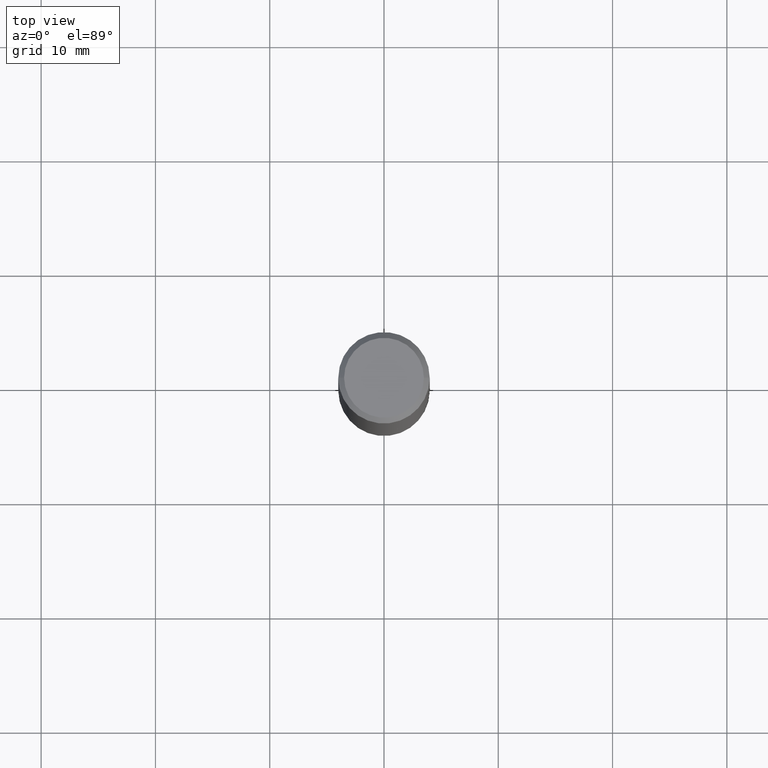
[diagram: clean part render]
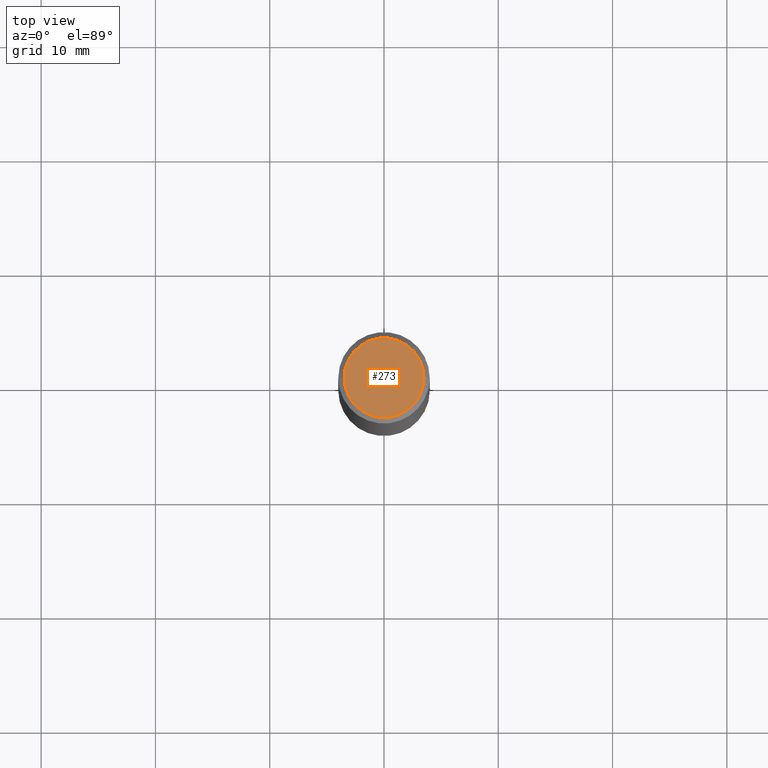
[diagram: same view with one face highlighted and labeled with its STEP entity id]
A machine part, top view. The second image highlights one B-rep face of the part: STEP entity #273.
In plain terms, the highlighted planar face has unit normal (0, -0, -1).
Its self-contained STEP definition (entity closure, byte-faithful):
#7 = CARTESIAN_POINT ( 'NONE',  ( -1.043851414335219820E-46, 1.490343170380447200E-32, 4.268512490100411279E-18 ) ) ;
#16 = ORIENTED_EDGE ( 'NONE', *, *, #254, .T. ) ;
#38 = FACE_OUTER_BOUND ( 'NONE', #351, .T. ) ;
#55 = DIRECTION ( 'NONE',  ( 1.000000000000000000, -6.982962677686265922E-15, 4.876173381029105087E-29 ) ) ;
#76 = CIRCLE ( 'NONE', #113, 0.1374999999999998723 ) ;
#104 = PLANE ( 'NONE',  #105 ) ;
#105 = AXIS2_PLACEMENT_3D ( 'NONE', #345, #336, #286 ) ;
#113 = AXIS2_PLACEMENT_3D ( 'NONE', #330, #159, #55 ) ;
#159 = DIRECTION ( 'NONE',  ( -2.445468806185136597E-29, 3.491481338843145583E-15, 1.000000000000000000 ) ) ;
#175 = EDGE_CURVE ( 'NONE', #288, #340, #76, .T. ) ;
#250 = DIRECTION ( 'NONE',  ( 1.000000000000000000, -6.982962677686265922E-15, 4.876173381029105087E-29 ) ) ;
#254 = EDGE_CURVE ( 'NONE', #340, #288, #260, .T. ) ;
#260 = CIRCLE ( 'NONE', #305, 0.1374999999999998723 ) ;
#273 = ADVANCED_FACE ( 'NONE', ( #38 ), #104, .F. ) ;
#286 = DIRECTION ( 'NONE',  ( -1.000000000000000000, 6.982962677686265922E-15, -4.876176775795935793E-29 ) ) ;
#288 = VERTEX_POINT ( 'NONE', #339 ) ;
#305 = AXIS2_PLACEMENT_3D ( 'NONE', #7, #342, #250 ) ;
#310 = ORIENTED_EDGE ( 'NONE', *, *, #175, .T. ) ;
#321 = CARTESIAN_POINT ( 'NONE',  ( -0.1374999999999998723, 9.950721815702917441E-16, 4.268512490093574228E-18 ) ) ;
#330 = CARTESIAN_POINT ( 'NONE',  ( -1.043851414335219820E-46, 1.490343170380447200E-32, 4.268512490100411279E-18 ) ) ;
#336 = DIRECTION ( 'NONE',  ( 2.438088387897960049E-29, -3.491481338843145188E-15, -1.000000000000000000 ) ) ;
#339 = CARTESIAN_POINT ( 'NONE',  ( 0.1374999999999998723, -1.046838268059731505E-15, 4.268512490107428597E-18 ) ) ;
#340 = VERTEX_POINT ( 'NONE', #321 ) ;
#342 = DIRECTION ( 'NONE',  ( -2.445468806185136597E-29, 3.491481338843145583E-15, 1.000000000000000000 ) ) ;
#345 = CARTESIAN_POINT ( 'NONE',  ( 9.601573681818604894E-16, 0.1374999999999998723, -4.779444278458818063E-16 ) ) ;
#351 = EDGE_LOOP ( 'NONE', ( #16, #310 ) ) ;